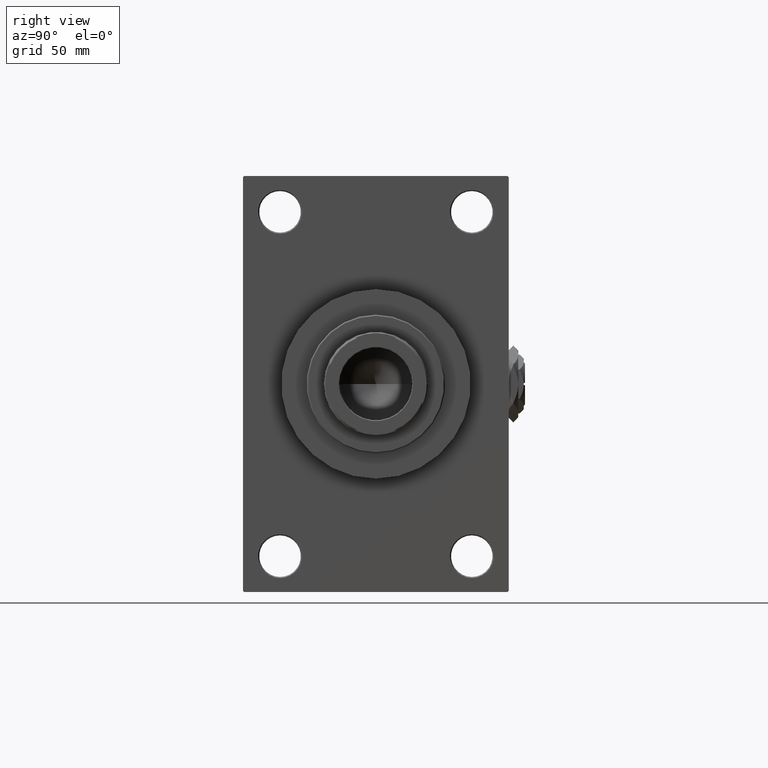
[diagram: clean part render]
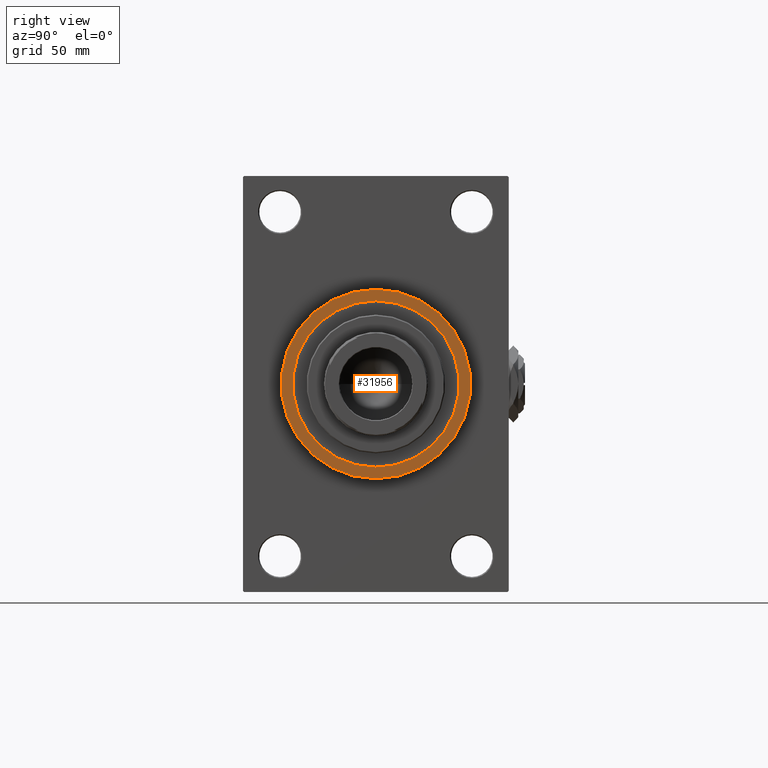
[diagram: same view with one face highlighted and labeled with its STEP entity id]
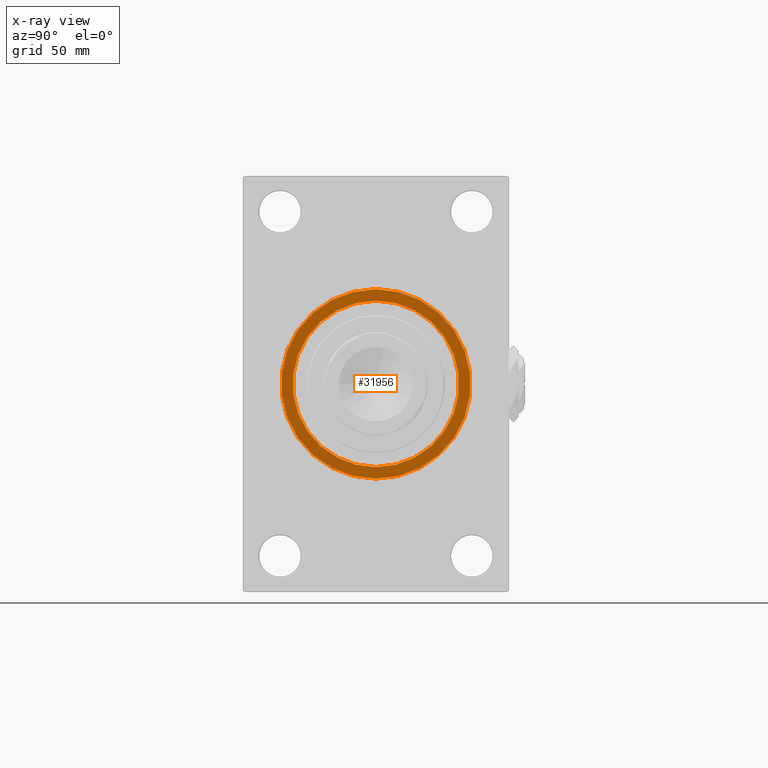
[diagram: x-ray of the same camera — body ghosted, the highlighted face saturated]
A machine part, right view. The second image highlights one B-rep face of the part: STEP entity #31956.
The next image is the same camera in x-ray: the body ghosted, the highlighted face saturated — about 0% of this face is hidden behind the body in this view.
In plain terms, the highlighted planar face has unit normal (1, 0, 0).
Its self-contained STEP definition (entity closure, byte-faithful):
#1501 = ORIENTED_EDGE ( 'NONE', *, *, #22458, .F. ) ;
#2388 = CARTESIAN_POINT ( 'NONE',  ( 179.0000000000000000, 0.000000000000000000, 0.000000000000000000 ) ) ;
#3168 = VERTEX_POINT ( 'NONE', #43828 ) ;
#3573 = CARTESIAN_POINT ( 'NONE',  ( 179.0000000000000000, 0.000000000000000000, -36.00000000000000000 ) ) ;
#4793 = AXIS2_PLACEMENT_3D ( 'NONE', #45038, #14331, #48811 ) ;
#8630 = EDGE_LOOP ( 'NONE', ( #49663, #22622 ) ) ;
#11321 = CARTESIAN_POINT ( 'NONE',  ( 179.0000000000000000, 5.021051876504148963E-15, -41.00000000000000000 ) ) ;
#11685 = AXIS2_PLACEMENT_3D ( 'NONE', #2388, #33588, #26028 ) ;
#12200 = AXIS2_PLACEMENT_3D ( 'NONE', #24665, #31975, #12843 ) ;
#12747 = EDGE_CURVE ( 'NONE', #32778, #26174, #47892, .T. ) ;
#12843 = DIRECTION ( 'NONE',  ( 0.000000000000000000, 0.000000000000000000, -1.000000000000000000 ) ) ;
#14331 = DIRECTION ( 'NONE',  ( 1.000000000000000000, 0.000000000000000000, 0.000000000000000000 ) ) ;
#16360 = AXIS2_PLACEMENT_3D ( 'NONE', #20905, #28955, #28458 ) ;
#16365 = ORIENTED_EDGE ( 'NONE', *, *, #34539, .F. ) ;
#20196 = DIRECTION ( 'NONE',  ( 0.000000000000000000, 0.000000000000000000, -1.000000000000000000 ) ) ;
#20905 = CARTESIAN_POINT ( 'NONE',  ( 179.0000000000000000, 0.000000000000000000, 0.000000000000000000 ) ) ;
#22458 = EDGE_CURVE ( 'NONE', #25765, #3168, #39375, .T. ) ;
#22622 = ORIENTED_EDGE ( 'NONE', *, *, #42928, .T. ) ;
#23975 = PLANE ( 'NONE',  #47664 ) ;
#24665 = CARTESIAN_POINT ( 'NONE',  ( 179.0000000000000000, 0.000000000000000000, 0.000000000000000000 ) ) ;
#25765 = VERTEX_POINT ( 'NONE', #3573 ) ;
#26028 = DIRECTION ( 'NONE',  ( 0.000000000000000000, 0.000000000000000000, -1.000000000000000000 ) ) ;
#26174 = VERTEX_POINT ( 'NONE', #11321 ) ;
#26977 = FACE_BOUND ( 'NONE', #45658, .T. ) ;
#27736 = CARTESIAN_POINT ( 'NONE',  ( 179.0000000000000000, 0.000000000000000000, 0.000000000000000000 ) ) ;
#28458 = DIRECTION ( 'NONE',  ( 0.000000000000000000, 0.000000000000000000, -1.000000000000000000 ) ) ;
#28955 = DIRECTION ( 'NONE',  ( 1.000000000000000000, 0.000000000000000000, 0.000000000000000000 ) ) ;
#30696 = CIRCLE ( 'NONE', #12200, 41.00000000000000000 ) ;
#31956 = ADVANCED_FACE ( 'NONE', ( #26977, #46873 ), #23975, .T. ) ;
#31975 = DIRECTION ( 'NONE',  ( 1.000000000000000000, 0.000000000000000000, 0.000000000000000000 ) ) ;
#32778 = VERTEX_POINT ( 'NONE', #45751 ) ;
#33588 = DIRECTION ( 'NONE',  ( 1.000000000000000000, 0.000000000000000000, 0.000000000000000000 ) ) ;
#34539 = EDGE_CURVE ( 'NONE', #3168, #25765, #38060, .T. ) ;
#38060 = CIRCLE ( 'NONE', #16360, 36.00000000000000000 ) ;
#39070 = DIRECTION ( 'NONE',  ( 1.000000000000000000, 0.000000000000000000, 0.000000000000000000 ) ) ;
#39375 = CIRCLE ( 'NONE', #4793, 36.00000000000000000 ) ;
#42928 = EDGE_CURVE ( 'NONE', #26174, #32778, #30696, .T. ) ;
#43828 = CARTESIAN_POINT ( 'NONE',  ( 179.0000000000000000, 4.408728476930470856E-15, 36.00000000000000000 ) ) ;
#45038 = CARTESIAN_POINT ( 'NONE',  ( 179.0000000000000000, 0.000000000000000000, 0.000000000000000000 ) ) ;
#45658 = EDGE_LOOP ( 'NONE', ( #1501, #16365 ) ) ;
#45751 = CARTESIAN_POINT ( 'NONE',  ( 179.0000000000000000, 0.000000000000000000, 41.00000000000000000 ) ) ;
#46873 = FACE_OUTER_BOUND ( 'NONE', #8630, .T. ) ;
#47664 = AXIS2_PLACEMENT_3D ( 'NONE', #27736, #39070, #20196 ) ;
#47892 = CIRCLE ( 'NONE', #11685, 41.00000000000000000 ) ;
#48811 = DIRECTION ( 'NONE',  ( 0.000000000000000000, 0.000000000000000000, -1.000000000000000000 ) ) ;
#49663 = ORIENTED_EDGE ( 'NONE', *, *, #12747, .T. ) ;